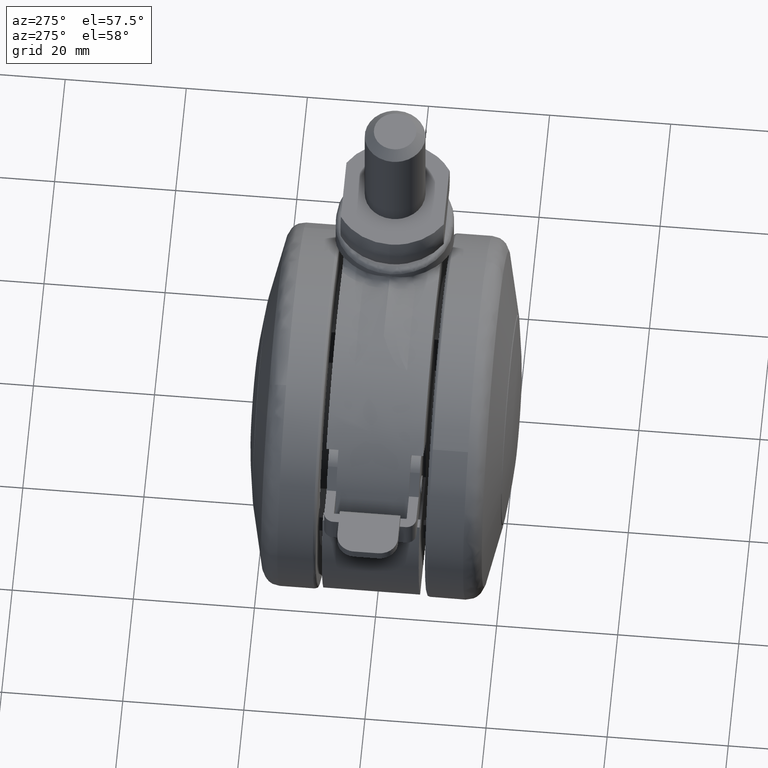
[diagram: clean part render]
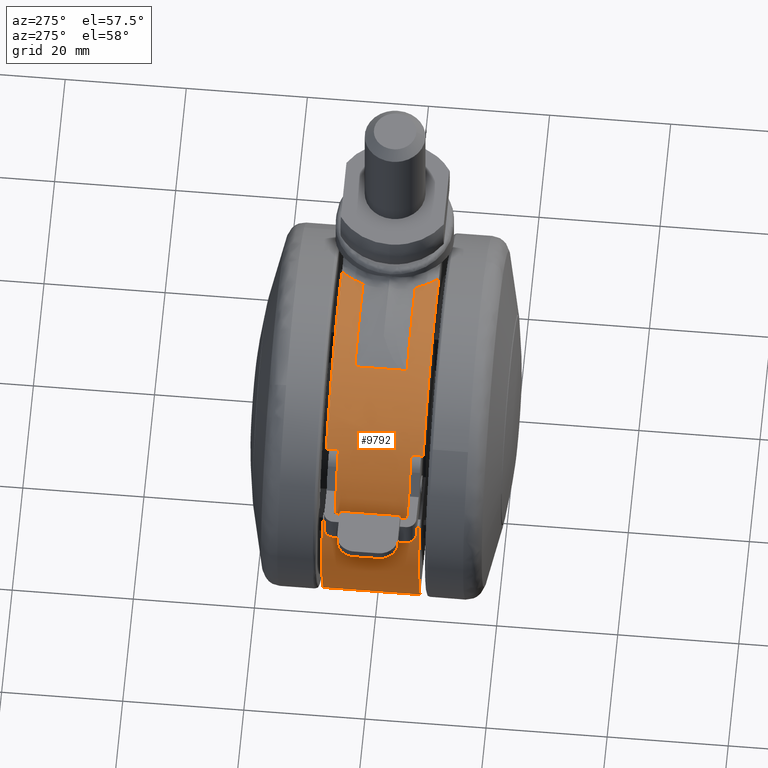
[diagram: same view with one face highlighted and labeled with its STEP entity id]
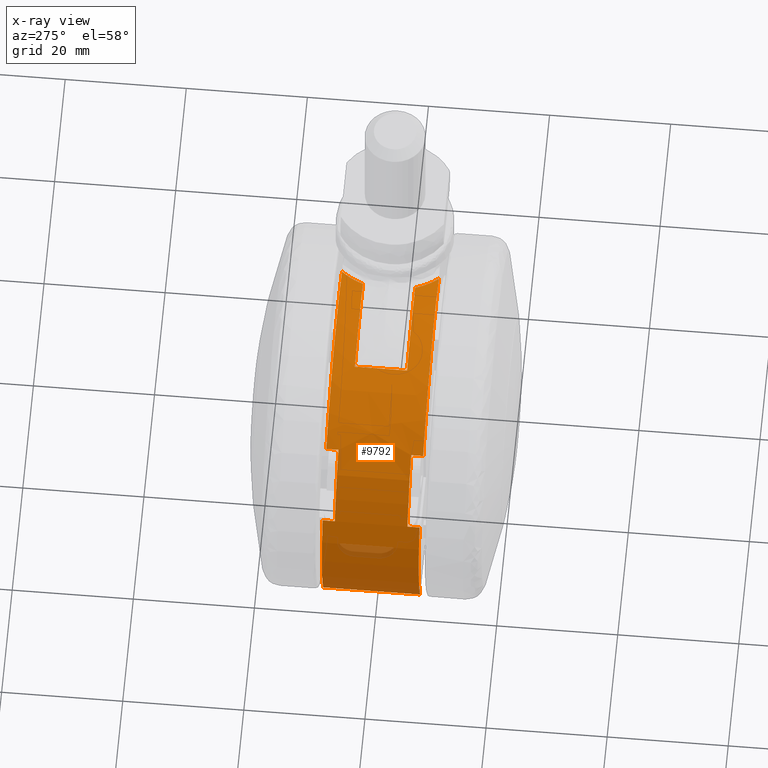
[diagram: x-ray of the same camera — body ghosted, the highlighted face saturated]
A machine part, auxiliary view. The second image highlights one B-rep face of the part: STEP entity #9792.
The next image is the same camera in x-ray: the body ghosted, the highlighted face saturated — about 3% of this face is hidden behind the body in this view.
In plain terms, the highlighted face is a freeform B-spline surface patch.
Its self-contained STEP definition (entity closure, byte-faithful):
#6418=CARTESIAN_POINT('',(-28.371420479066600,7.999999999999789,9.750000000000000));
#6419=VERTEX_POINT('',#6418);
#6420=CARTESIAN_POINT('',(-28.371420479066600,6.0,9.750000000000000));
#6421=VERTEX_POINT('',#6420);
#6422=CARTESIAN_POINT('',(-28.371420479066600,7.999999999999789,9.750000000000000));
#6423=CARTESIAN_POINT('',(-28.371420479066600,6.0,9.750000000000000));
#6424=QUASI_UNIFORM_CURVE('',1,(#6422,#6423),.UNSPECIFIED.,.F.,.U.);
#6425=EDGE_CURVE('',#6419,#6421,#6424,.T.);
#6463=CARTESIAN_POINT('',(-21.521849362914800,6.0,20.899999999999999));
#6464=VERTEX_POINT('',#6463);
#6470=CARTESIAN_POINT('',(-21.521849362914800,7.999999999999789,20.899999999999999));
#6471=VERTEX_POINT('',#6470);
#6472=CARTESIAN_POINT('',(-21.521849362914800,7.999999999999789,20.899999999999999));
#6473=CARTESIAN_POINT('',(-21.521849362914800,6.0,20.899999999999999));
#6474=QUASI_UNIFORM_CURVE('',1,(#6472,#6473),.UNSPECIFIED.,.F.,.U.);
#6475=EDGE_CURVE('',#6471,#6464,#6474,.T.);
#6575=CARTESIAN_POINT('',(-28.371420479066600,-6.0,9.750000000000000));
#6576=VERTEX_POINT('',#6575);
#6582=CARTESIAN_POINT('',(-28.371420479066600,-8.0,9.750000000000000));
#6583=VERTEX_POINT('',#6582);
#6584=CARTESIAN_POINT('',(-28.371420479066600,-8.0,9.750000000000000));
#6585=CARTESIAN_POINT('',(-28.371420479066600,-6.0,9.750000000000000));
#6586=QUASI_UNIFORM_CURVE('',1,(#6584,#6585),.UNSPECIFIED.,.F.,.U.);
#6587=EDGE_CURVE('',#6583,#6576,#6586,.T.);
#6602=CARTESIAN_POINT('',(-21.521849362914800,-8.0,20.899999999999999));
#6603=VERTEX_POINT('',#6602);
#6604=CARTESIAN_POINT('',(-21.521849362914800,-6.0,20.899999999999999));
#6605=VERTEX_POINT('',#6604);
#6606=CARTESIAN_POINT('',(-21.521849362914800,-8.0,20.899999999999999));
#6607=CARTESIAN_POINT('',(-21.521849362914800,-6.0,20.899999999999999));
#6608=QUASI_UNIFORM_CURVE('',1,(#6606,#6607),.UNSPECIFIED.,.F.,.U.);
#6609=EDGE_CURVE('',#6603,#6605,#6608,.T.);
#6819=CARTESIAN_POINT('',(5.638386351862460,-4.317473000000000,29.465379674240150));
#6820=VERTEX_POINT('',#6819);
#7020=CARTESIAN_POINT('',(8.099200221785129,-8.0,28.886033922424101));
#7021=VERTEX_POINT('',#7020);
#7022=CARTESIAN_POINT('',(8.099200221785129,-8.0,28.886033922424101));
#7023=CARTESIAN_POINT('',(7.835848894413878,-7.740697899188318,28.959873589537320));
#7024=CARTESIAN_POINT('',(7.586824178319195,-7.468803388303440,29.025829717961098));
#7025=CARTESIAN_POINT('',(7.117070716859942,-6.900603018548786,29.144570615125179));
#7026=CARTESIAN_POINT('',(6.896342078744669,-6.604296163514496,29.197350615519920));
#7027=CARTESIAN_POINT('',(6.586787922703630,-6.141573766938197,29.268164088638908));
#7028=CARTESIAN_POINT('',(6.487199041792786,-5.984283867865982,29.290371939919510));
#7029=CARTESIAN_POINT('',(6.295342165589043,-5.663546441122172,29.332205965539281));
#7030=CARTESIAN_POINT('',(6.203158464943255,-5.500199511095742,29.351812115777449));
#7031=CARTESIAN_POINT('',(5.939654132778627,-5.004474973917542,29.406677923005081));
#7032=CARTESIAN_POINT('',(5.780652415105851,-4.665296314509707,29.438156165220750));
#7033=CARTESIAN_POINT('',(5.638386351862460,-4.317473000000000,29.465379674240150));
#7034=B_SPLINE_CURVE_WITH_KNOTS('',3,(#7022,#7023,#7024,#7025,#7026,#7027,#7028,#7029,#7030,#7031,#7032,#7033),.UNSPECIFIED.,.F.,.U.,(4,2,2,2,2,4),(0.0,0.250000000000000,0.500000000000000,0.625000000000000,0.750000000000000,1.0),.UNSPECIFIED.);
#7035=EDGE_CURVE('',#7021,#6820,#7034,.T.);
#7093=CARTESIAN_POINT('',(5.638386351862460,4.317473000000000,29.465379674240150));
#7094=VERTEX_POINT('',#7093);
#7204=CARTESIAN_POINT('',(8.099200221784960,7.999999999999830,28.886033922424151));
#7205=VERTEX_POINT('',#7204);
#7239=CARTESIAN_POINT('',(5.638386351862460,4.317473000000000,29.465379674240150));
#7240=CARTESIAN_POINT('',(5.780652415105862,4.665296314509685,29.438156165220750));
#7241=CARTESIAN_POINT('',(5.939654132778608,5.004474973917505,29.406677923005070));
#7242=CARTESIAN_POINT('',(6.203158464943217,5.500199511095677,29.351812115777449));
#7243=CARTESIAN_POINT('',(6.295342165589000,5.663546441122098,29.332205965539291));
#7244=CARTESIAN_POINT('',(6.487199041792731,5.984283867865895,29.290371939919531));
#7245=CARTESIAN_POINT('',(6.586787922703566,6.141573766938100,29.268164088638919));
#7246=CARTESIAN_POINT('',(6.896342078744587,6.604296163514379,29.197350615519930));
#7247=CARTESIAN_POINT('',(7.117070716859842,6.900603018548657,29.144570615125200));
#7248=CARTESIAN_POINT('',(7.586824178319063,7.468803388303291,29.025829717961152));
#7249=CARTESIAN_POINT('',(7.835848894413728,7.740697899188157,28.959873589537359));
#7250=CARTESIAN_POINT('',(8.099200221784960,7.999999999999830,28.886033922424151));
#7251=B_SPLINE_CURVE_WITH_KNOTS('',3,(#7239,#7240,#7241,#7242,#7243,#7244,#7245,#7246,#7247,#7248,#7249,#7250),.UNSPECIFIED.,.F.,.U.,(4,2,2,2,2,4),(0.0,0.250000000000000,0.375000000000000,0.500000000000000,0.750000000000000,1.0),.UNSPECIFIED.);
#7252=EDGE_CURVE('',#7094,#7205,#7251,.T.);
#7764=CARTESIAN_POINT('',(-9.841875000001100,-4.317473000000000,28.339680599547101));
#7765=VERTEX_POINT('',#7764);
#8170=CARTESIAN_POINT('',(-9.841875000001140,4.317473000000000,28.339680599547201));
#8171=VERTEX_POINT('',#8170);
#8204=CARTESIAN_POINT('',(-9.841875000001100,-4.317473000000000,28.339680599547101));
#8205=CARTESIAN_POINT('',(-9.841875000001140,4.317473000000000,28.339680599547201));
#8206=QUASI_UNIFORM_CURVE('',1,(#8204,#8205),.UNSPECIFIED.,.F.,.U.);
#8207=EDGE_CURVE('',#7765,#8171,#8206,.T.);
#8795=CARTESIAN_POINT('',(-27.271780286589308,7.999999999999789,-12.500000000000000));
#8796=VERTEX_POINT('',#8795);
#8811=CARTESIAN_POINT('',(-27.271780286589308,-8.0,-12.500000000000000));
#8812=VERTEX_POINT('',#8811);
#8818=CARTESIAN_POINT('',(-27.271780286589308,7.999999999999789,-12.500000000000000));
#8819=CARTESIAN_POINT('',(-27.271780286589308,-8.0,-12.500000000000000));
#8820=QUASI_UNIFORM_CURVE('',1,(#8818,#8819),.UNSPECIFIED.,.F.,.U.);
#8821=EDGE_CURVE('',#8796,#8812,#8820,.T.);
#9043=CARTESIAN_POINT('',(-9.841875000001100,-4.317473000000000,28.339680599547101));
#9044=CARTESIAN_POINT('',(-2.252476074864699,-4.317472999999999,30.975345997537943));
#9045=CARTESIAN_POINT('',(5.638386351862460,-4.317473000000000,29.465379674240150));
#9053=(BOUNDED_CURVE()B_SPLINE_CURVE(2,(#9043,#9044,#9045),.UNSPECIFIED.,.F.,.U.)CURVE()GEOMETRIC_REPRESENTATION_ITEM()QUASI_UNIFORM_CURVE()RATIONAL_B_SPLINE_CURVE((1.0,0.965961569006534,1.0))REPRESENTATION_ITEM(''));
#9054=EDGE_CURVE('',#7765,#6820,#9053,.T.);
#9081=CARTESIAN_POINT('',(-9.841875000001140,4.317473000000000,28.339680599547211));
#9082=CARTESIAN_POINT('',(-2.252476074864699,4.317472999999999,30.975345997537943));
#9083=CARTESIAN_POINT('',(5.638386351862460,4.317473000000000,29.465379674240150));
#9091=(BOUNDED_CURVE()B_SPLINE_CURVE(2,(#9081,#9082,#9083),.UNSPECIFIED.,.F.,.U.)CURVE()GEOMETRIC_REPRESENTATION_ITEM()QUASI_UNIFORM_CURVE()RATIONAL_B_SPLINE_CURVE((1.0,0.965961569006534,1.0))REPRESENTATION_ITEM(''));
#9092=EDGE_CURVE('',#8171,#7094,#9091,.T.);
#9684=CARTESIAN_POINT('',(-26.768758520688252,8.399999999999828,-13.543764885033969));
#9685=CARTESIAN_POINT('',(-26.768758520688252,-8.409999999999997,-13.543764885033969));
#9686=CARTESIAN_POINT('',(-35.990379796404874,8.399999999999828,4.682434048149925));
#9687=CARTESIAN_POINT('',(-35.990379796404874,-8.409999999999997,4.682434048149925));
#9688=CARTESIAN_POINT('',(-22.412139621372368,8.399999999999828,19.942316755886459));
#9689=CARTESIAN_POINT('',(-22.412139621372368,-8.409999999999997,19.942316755886459));
#9690=CARTESIAN_POINT('',(-8.833899446339864,8.399999999999828,35.202199463622989));
#9691=CARTESIAN_POINT('',(-8.833899446339864,-8.409999999999997,35.202199463622989));
#9692=CARTESIAN_POINT('',(10.340605191189860,8.399999999999828,28.161531994547740));
#9693=CARTESIAN_POINT('',(10.340605191189860,-8.409999999999997,28.161531994547740));
#9701=(BOUNDED_SURFACE()B_SPLINE_SURFACE(1,2,((#9684,#9686,#9688,#9690,#9692),(#9685,#9687,#9689,#9691,#9693)),.UNSPECIFIED.,.F.,.F.,.U.)B_SPLINE_SURFACE_WITH_KNOTS((2,2),(3,2,3),(0.0,16.809999999999832),(0.0,36.974143403399509,73.948286806799018),.UNSPECIFIED.)GEOMETRIC_REPRESENTATION_ITEM()RATIONAL_B_SPLINE_SURFACE(((1.0,0.826589749127189,1.0,0.826589749127189,1.0),(1.0,0.826589749127189,1.0,0.826589749127189,1.0)))REPRESENTATION_ITEM('')SURFACE());
#9702=CARTESIAN_POINT('',(8.099200221784956,7.999999999999830,28.886033922424151));
#9703=CARTESIAN_POINT('',(-9.087038080600848,7.999999999999830,33.704791161446686));
#9704=CARTESIAN_POINT('',(-21.521849362914839,7.999999999999830,20.900000000000048));
#9712=(BOUNDED_CURVE()B_SPLINE_CURVE(2,(#9702,#9703,#9704),.UNSPECIFIED.,.F.,.U.)CURVE()GEOMETRIC_REPRESENTATION_ITEM()QUASI_UNIFORM_CURVE()RATIONAL_B_SPLINE_CURVE((1.0,0.859395246620592,1.0))REPRESENTATION_ITEM(''));
#9713=EDGE_CURVE('',#7205,#6471,#9712,.T.);
#9714=ORIENTED_EDGE('',*,*,#9713,.T.);
#9715=ORIENTED_EDGE('',*,*,#6475,.T.);
#9716=CARTESIAN_POINT('',(-21.521849362914839,6.0,20.900000000000048));
#9717=CARTESIAN_POINT('',(-26.192519389915553,6.000000000000001,16.090360921292362));
#9718=CARTESIAN_POINT('',(-28.371420479066600,6.0,9.750000000000009));
#9726=(BOUNDED_CURVE()B_SPLINE_CURVE(2,(#9716,#9717,#9718),.UNSPECIFIED.,.F.,.U.)CURVE()GEOMETRIC_REPRESENTATION_ITEM()QUASI_UNIFORM_CURVE()RATIONAL_B_SPLINE_CURVE((1.0,0.975927034431704,1.0))REPRESENTATION_ITEM(''));
#9727=EDGE_CURVE('',#6464,#6421,#9726,.T.);
#9728=ORIENTED_EDGE('',*,*,#9727,.T.);
#9729=ORIENTED_EDGE('',*,*,#6425,.F.);
#9730=CARTESIAN_POINT('',(-28.371420479066600,7.999999999999830,9.750000000000014));
#9731=CARTESIAN_POINT('',(-32.270144797849838,7.999999999999830,-1.594856100529363));
#9732=CARTESIAN_POINT('',(-27.271780286589291,7.999999999999830,-12.499999999999989));
#9740=(BOUNDED_CURVE()B_SPLINE_CURVE(2,(#9730,#9731,#9732),.UNSPECIFIED.,.F.,.U.)CURVE()GEOMETRIC_REPRESENTATION_ITEM()QUASI_UNIFORM_CURVE()RATIONAL_B_SPLINE_CURVE((1.0,0.928518576886963,1.0))REPRESENTATION_ITEM(''));
#9741=EDGE_CURVE('',#6419,#8796,#9740,.T.);
#9742=ORIENTED_EDGE('',*,*,#9741,.T.);
#9743=ORIENTED_EDGE('',*,*,#8821,.T.);
#9744=CARTESIAN_POINT('',(-28.371420479066600,-8.0,9.750000000000014));
#9745=CARTESIAN_POINT('',(-32.270144797849838,-8.0,-1.594856100529363));
#9746=CARTESIAN_POINT('',(-27.271780286589291,-8.0,-12.499999999999989));
#9754=(BOUNDED_CURVE()B_SPLINE_CURVE(2,(#9744,#9745,#9746),.UNSPECIFIED.,.F.,.U.)CURVE()GEOMETRIC_REPRESENTATION_ITEM()QUASI_UNIFORM_CURVE()RATIONAL_B_SPLINE_CURVE((1.0,0.928518576886963,1.0))REPRESENTATION_ITEM(''));
#9755=EDGE_CURVE('',#6583,#8812,#9754,.T.);
#9756=ORIENTED_EDGE('',*,*,#9755,.F.);
#9757=ORIENTED_EDGE('',*,*,#6587,.T.);
#9758=CARTESIAN_POINT('',(-21.521849362914839,-6.0,20.900000000000048));
#9759=CARTESIAN_POINT('',(-26.192519389915553,-6.000000000000001,16.090360921292362));
#9760=CARTESIAN_POINT('',(-28.371420479066600,-6.0,9.750000000000009));
#9768=(BOUNDED_CURVE()B_SPLINE_CURVE(2,(#9758,#9759,#9760),.UNSPECIFIED.,.F.,.U.)CURVE()GEOMETRIC_REPRESENTATION_ITEM()QUASI_UNIFORM_CURVE()RATIONAL_B_SPLINE_CURVE((1.0,0.975927034431704,1.0))REPRESENTATION_ITEM(''));
#9769=EDGE_CURVE('',#6605,#6576,#9768,.T.);
#9770=ORIENTED_EDGE('',*,*,#9769,.F.);
#9771=ORIENTED_EDGE('',*,*,#6609,.F.);
#9772=CARTESIAN_POINT('',(8.099200221785134,-8.0,28.886033922424090));
#9773=CARTESIAN_POINT('',(-9.087038080600765,-8.0,33.704791161446792));
#9774=CARTESIAN_POINT('',(-21.521849362914839,-8.0,20.900000000000048));
#9782=(BOUNDED_CURVE()B_SPLINE_CURVE(2,(#9772,#9773,#9774),.UNSPECIFIED.,.F.,.U.)CURVE()GEOMETRIC_REPRESENTATION_ITEM()QUASI_UNIFORM_CURVE()RATIONAL_B_SPLINE_CURVE((1.0,0.859395246620591,1.0))REPRESENTATION_ITEM(''));
#9783=EDGE_CURVE('',#7021,#6603,#9782,.T.);
#9784=ORIENTED_EDGE('',*,*,#9783,.F.);
#9785=ORIENTED_EDGE('',*,*,#7035,.T.);
#9786=ORIENTED_EDGE('',*,*,#9054,.F.);
#9787=ORIENTED_EDGE('',*,*,#8207,.T.);
#9788=ORIENTED_EDGE('',*,*,#9092,.T.);
#9789=ORIENTED_EDGE('',*,*,#7252,.T.);
#9790=EDGE_LOOP('',(#9714,#9715,#9728,#9729,#9742,#9743,#9756,#9757,#9770,#9771,#9784,#9785,#9786,#9787,#9788,#9789));
#9791=FACE_OUTER_BOUND('',#9790,.T.);
#9792=ADVANCED_FACE('',(#9791),#9701,.T.);